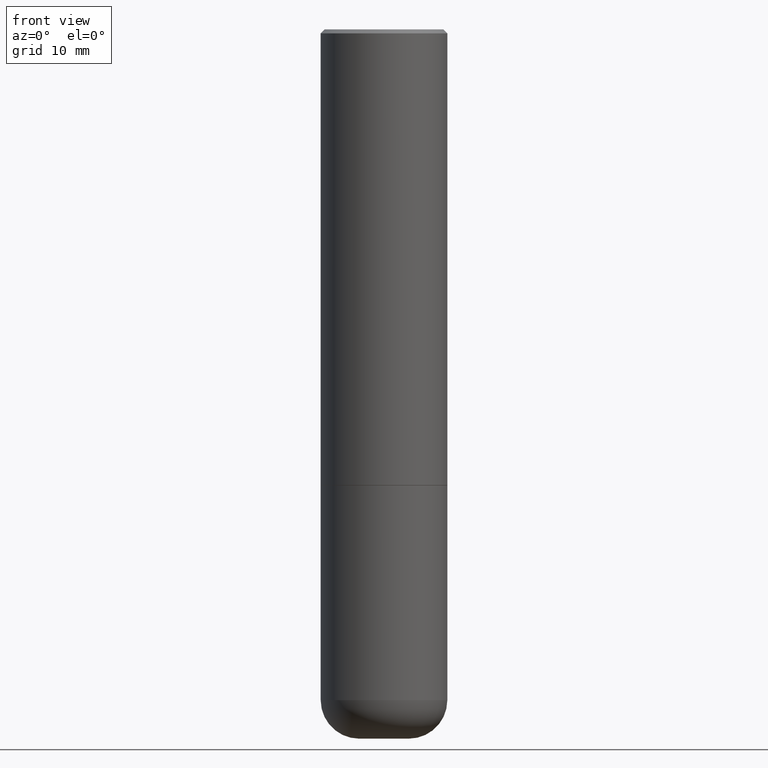
[diagram: clean part render]
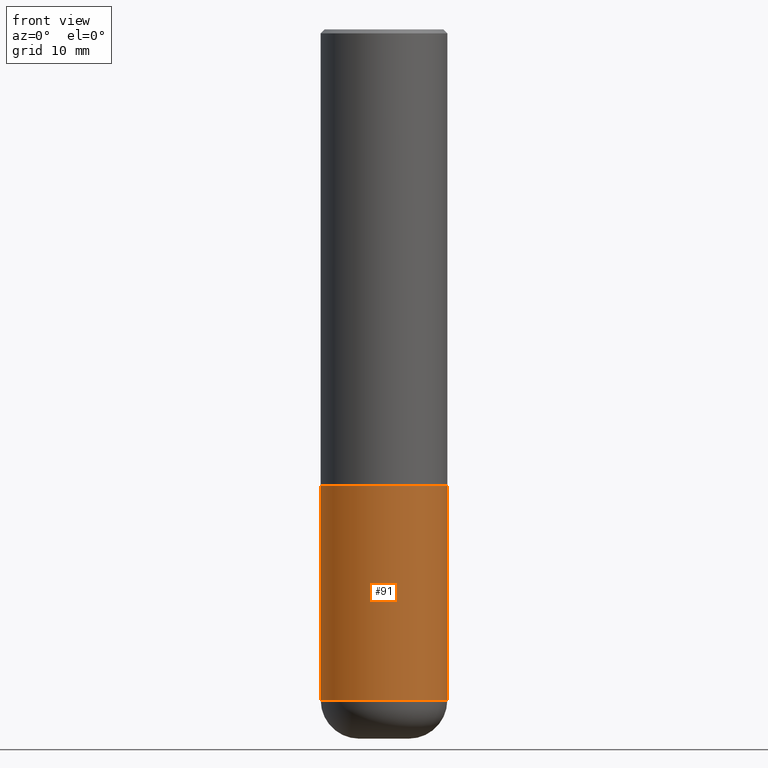
[diagram: same view with one face highlighted and labeled with its STEP entity id]
A machine part, front view. The second image highlights one B-rep face of the part: STEP entity #91.
In plain terms, the highlighted cylindrical surface (partial cylindrical patch) has radius 7.9375 mm, axis along (-0, 0, 1).
Its self-contained STEP definition (entity closure, byte-faithful):
#2 = DIRECTION ( 'NONE',  ( -2.445468806185136877E-29, 3.491481338843145188E-15, 1.000000000000000000 ) ) ;
#15 = ORIENTED_EDGE ( 'NONE', *, *, #239, .T. ) ;
#34 = AXIS2_PLACEMENT_3D ( 'NONE', #352, #184, #124 ) ;
#35 = EDGE_CURVE ( 'NONE', #100, #272, #333, .T. ) ;
#38 = LINE ( 'NONE', #228, #332 ) ;
#43 = CARTESIAN_POINT ( 'NONE',  ( 0.3125000000000000000, -2.182175836776958347E-15, 1.523805242436230075E-29 ) ) ;
#87 = DIRECTION ( 'NONE',  ( 1.000000000000000000, -6.982962677686266711E-15, 4.876176775795936353E-29 ) ) ;
#91 = ADVANCED_FACE ( 'NONE', ( #321 ), #181, .T. ) ;
#100 = VERTEX_POINT ( 'NONE', #150 ) ;
#115 = VECTOR ( 'NONE', #164, 39.37007874015748143 ) ;
#124 = DIRECTION ( 'NONE',  ( 1.000000000000000000, -6.982962677686269077E-15, 0.000000000000000000 ) ) ;
#137 = VERTEX_POINT ( 'NONE', #212 ) ;
#145 = DIRECTION ( 'NONE',  ( 1.000000000000000000, -6.982962677686269077E-15, 0.000000000000000000 ) ) ;
#150 = CARTESIAN_POINT ( 'NONE',  ( 0.3125000000000000000, -1.373897906834776951E-14, -3.310000000000000053 ) ) ;
#164 = DIRECTION ( 'NONE',  ( -2.445468806185136877E-29, 3.491481338843145188E-15, 1.000000000000000000 ) ) ;
#181 = CYLINDRICAL_SURFACE ( 'NONE', #213, 0.3125000000000000000 ) ;
#184 = DIRECTION ( 'NONE',  ( -2.445468806185136597E-29, 3.491481338843145583E-15, 1.000000000000000000 ) ) ;
#187 = VERTEX_POINT ( 'NONE', #318 ) ;
#203 = EDGE_LOOP ( 'NONE', ( #308, #15, #342, #275 ) ) ;
#212 = CARTESIAN_POINT ( 'NONE',  ( -0.3125000000000000000, -9.336357182320498084E-15, -3.310000000000000053 ) ) ;
#213 = AXIS2_PLACEMENT_3D ( 'NONE', #382, #280, #87 ) ;
#217 = DIRECTION ( 'NONE',  ( -2.445468806185136597E-29, 3.491481338843145583E-15, 1.000000000000000000 ) ) ;
#223 = EDGE_CURVE ( 'NONE', #187, #272, #305, .T. ) ;
#228 = CARTESIAN_POINT ( 'NONE',  ( -0.3125000000000000000, 2.220446049250313081E-15, -1.537167215704658232E-29 ) ) ;
#239 = EDGE_CURVE ( 'NONE', #137, #100, #347, .T. ) ;
#253 = CARTESIAN_POINT ( 'NONE',  ( 5.502304813916556222E-29, -7.855833012397076871E-15, -2.249999999999999556 ) ) ;
#272 = VERTEX_POINT ( 'NONE', #391 ) ;
#275 = ORIENTED_EDGE ( 'NONE', *, *, #223, .F. ) ;
#280 = DIRECTION ( 'NONE',  ( -2.445468806185136597E-29, 3.491481338843145583E-15, 1.000000000000000000 ) ) ;
#305 = CIRCLE ( 'NONE', #401, 0.3125000000000000000 ) ;
#308 = ORIENTED_EDGE ( 'NONE', *, *, #358, .F. ) ;
#318 = CARTESIAN_POINT ( 'NONE',  ( -0.3125000000000000000, -7.485872072733631726E-15, -2.249999999999999556 ) ) ;
#321 = FACE_OUTER_BOUND ( 'NONE', #203, .T. ) ;
#332 = VECTOR ( 'NONE', #2, 39.37007874015748143 ) ;
#333 = LINE ( 'NONE', #43, #115 ) ;
#342 = ORIENTED_EDGE ( 'NONE', *, *, #35, .T. ) ;
#347 = CIRCLE ( 'NONE', #34, 0.3125000000000000000 ) ;
#352 = CARTESIAN_POINT ( 'NONE',  ( 8.094501748472800969E-29, -1.155680323157081116E-14, -3.310000000000000053 ) ) ;
#358 = EDGE_CURVE ( 'NONE', #137, #187, #38, .T. ) ;
#382 = CARTESIAN_POINT ( 'NONE',  ( 0.000000000000000000, 0.000000000000000000, 0.000000000000000000 ) ) ;
#391 = CARTESIAN_POINT ( 'NONE',  ( 0.3125000000000000000, -1.003800884917403522E-14, -2.249999999999999556 ) ) ;
#401 = AXIS2_PLACEMENT_3D ( 'NONE', #253, #217, #145 ) ;